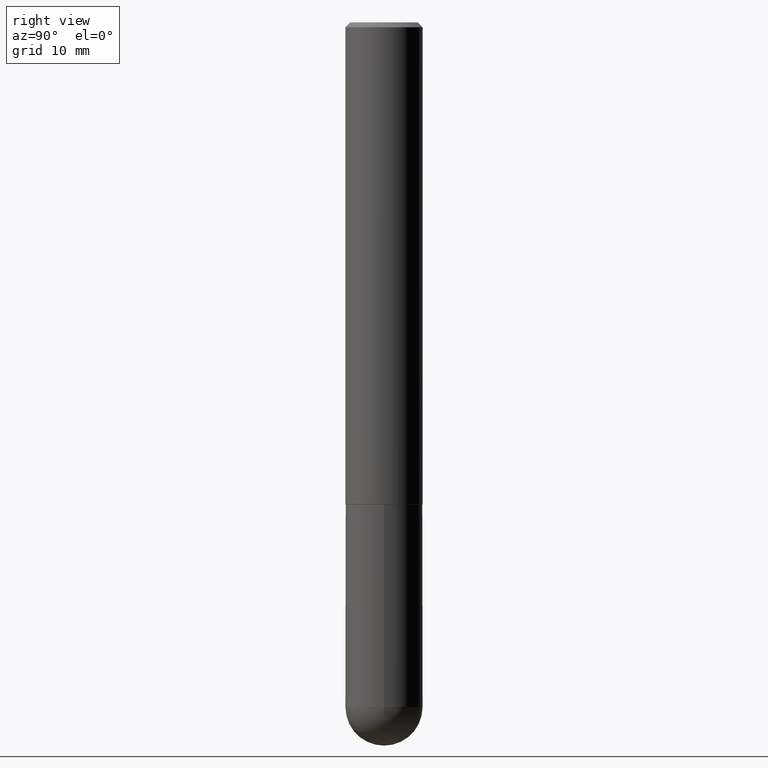
[diagram: clean part render]
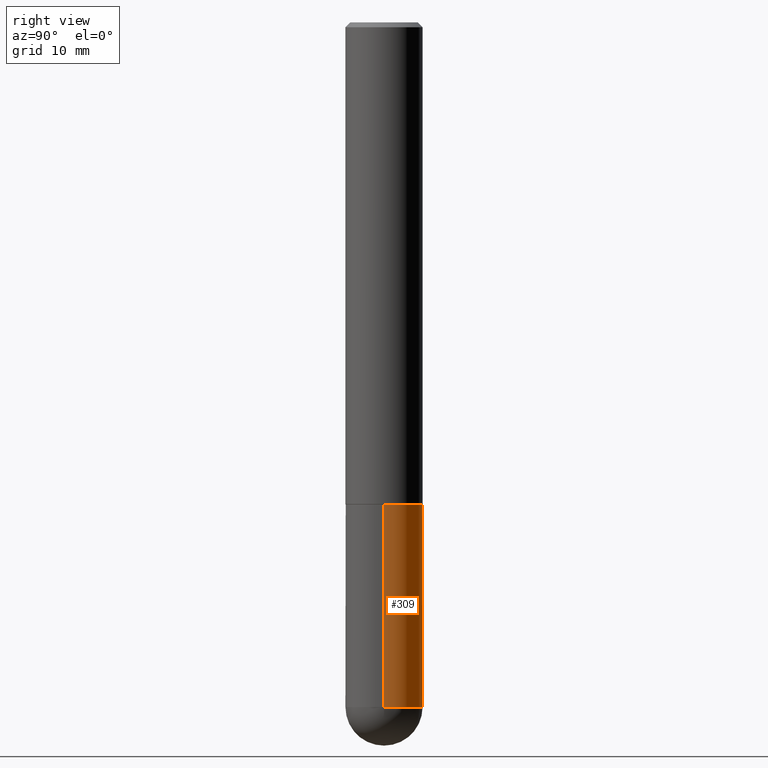
[diagram: same view with one face highlighted and labeled with its STEP entity id]
A machine part, right view. The second image highlights one B-rep face of the part: STEP entity #309.
In plain terms, the highlighted cylindrical surface (partial cylindrical patch) has radius 4.0005 mm, axis along (-0, 0, 1).
Its self-contained STEP definition (entity closure, byte-faithful):
#8 = VERTEX_POINT ( 'NONE', #401 ) ;
#25 = DIRECTION ( 'NONE',  ( 1.000000000000000000, -6.982962677686261977E-15, 0.000000000000000000 ) ) ;
#55 = DIRECTION ( 'NONE',  ( 1.000000000000000000, -6.982962677686261977E-15, 0.000000000000000000 ) ) ;
#60 = CARTESIAN_POINT ( 'NONE',  ( -0.1575000000000000011, 1.119104808822157801E-15, -7.747322767151475583E-30 ) ) ;
#61 = LINE ( 'NONE', #186, #184 ) ;
#73 = VERTEX_POINT ( 'NONE', #373 ) ;
#88 = AXIS2_PLACEMENT_3D ( 'NONE', #174, #148, #55 ) ;
#93 = CARTESIAN_POINT ( 'NONE',  ( 0.1575000000000000011, -9.416176022726072770E-15, -2.795299999999999674 ) ) ;
#99 = CIRCLE ( 'NONE', #319, 0.1575000000000000011 ) ;
#103 = VERTEX_POINT ( 'NONE', #119 ) ;
#105 = ORIENTED_EDGE ( 'NONE', *, *, #220, .F. ) ;
#119 = CARTESIAN_POINT ( 'NONE',  ( -0.1575000000000000011, -7.197254592168330052E-15, -1.968499999999999694 ) ) ;
#122 = CARTESIAN_POINT ( 'NONE',  ( 0.000000000000000000, 0.000000000000000000, 0.000000000000000000 ) ) ;
#127 = DIRECTION ( 'NONE',  ( -2.445468806185136877E-29, 3.491481338843145188E-15, 1.000000000000000000 ) ) ;
#138 = EDGE_CURVE ( 'NONE', #232, #266, #341, .T. ) ;
#148 = DIRECTION ( 'NONE',  ( -2.445468806185136597E-29, 3.491481338843145583E-15, 1.000000000000000000 ) ) ;
#157 = FACE_OUTER_BOUND ( 'NONE', #386, .T. ) ;
#167 = ORIENTED_EDGE ( 'NONE', *, *, #301, .T. ) ;
#174 = CARTESIAN_POINT ( 'NONE',  ( 6.835818953929311707E-29, -9.759737786468243605E-15, -2.795299999999999674 ) ) ;
#180 = DIRECTION ( 'NONE',  ( -2.445468806185136877E-29, 3.491481338843145188E-15, 1.000000000000000000 ) ) ;
#182 = ORIENTED_EDGE ( 'NONE', *, *, #292, .T. ) ;
#184 = VECTOR ( 'NONE', #127, 39.37007874015748143 ) ;
#185 = LINE ( 'NONE', #60, #203 ) ;
#186 = CARTESIAN_POINT ( 'NONE',  ( 0.1575000000000000011, -1.099816621735586889E-15, 7.679978421878598033E-30 ) ) ;
#189 = CIRCLE ( 'NONE', #349, 0.1575000000000000011 ) ;
#203 = VECTOR ( 'NONE', #180, 39.37007874015748143 ) ;
#220 = EDGE_CURVE ( 'NONE', #232, #73, #61, .T. ) ;
#232 = VERTEX_POINT ( 'NONE', #93 ) ;
#235 = AXIS2_PLACEMENT_3D ( 'NONE', #122, #286, #323 ) ;
#248 = CARTESIAN_POINT ( 'NONE',  ( 6.835818953929311707E-29, -9.759737786468243605E-15, -2.795299999999999674 ) ) ;
#254 = ORIENTED_EDGE ( 'NONE', *, *, #397, .F. ) ;
#266 = VERTEX_POINT ( 'NONE', #287 ) ;
#280 = CYLINDRICAL_SURFACE ( 'NONE', #235, 0.1575000000000000011 ) ;
#286 = DIRECTION ( 'NONE',  ( -2.445468806185136597E-29, 3.491481338843145583E-15, 1.000000000000000000 ) ) ;
#287 = CARTESIAN_POINT ( 'NONE',  ( 1.099816621735654731E-15, 0.1574999999999901201, -2.795300000000000118 ) ) ;
#292 = EDGE_CURVE ( 'NONE', #8, #103, #185, .T. ) ;
#293 = CARTESIAN_POINT ( 'NONE',  ( 4.813905344975440714E-29, -6.872981015512730918E-15, -1.968499999999999694 ) ) ;
#301 = EDGE_CURVE ( 'NONE', #266, #8, #189, .T. ) ;
#309 = ADVANCED_FACE ( 'NONE', ( #157 ), #280, .T. ) ;
#317 = DIRECTION ( 'NONE',  ( -2.445468806185136597E-29, 3.491481338843145583E-15, 1.000000000000000000 ) ) ;
#319 = AXIS2_PLACEMENT_3D ( 'NONE', #293, #382, #357 ) ;
#323 = DIRECTION ( 'NONE',  ( 1.000000000000000000, -6.982962677686265922E-15, 4.876176775795935232E-29 ) ) ;
#341 = CIRCLE ( 'NONE', #88, 0.1575000000000000011 ) ;
#349 = AXIS2_PLACEMENT_3D ( 'NONE', #248, #317, #25 ) ;
#357 = DIRECTION ( 'NONE',  ( 1.000000000000000000, -6.982962677686268288E-15, 0.000000000000000000 ) ) ;
#363 = ORIENTED_EDGE ( 'NONE', *, *, #138, .T. ) ;
#373 = CARTESIAN_POINT ( 'NONE',  ( 0.1575000000000000011, -7.972797637248318399E-15, -1.968499999999999694 ) ) ;
#382 = DIRECTION ( 'NONE',  ( -2.445468806185136597E-29, 3.491481338843145583E-15, 1.000000000000000000 ) ) ;
#386 = EDGE_LOOP ( 'NONE', ( #167, #182, #254, #105, #363 ) ) ;
#397 = EDGE_CURVE ( 'NONE', #73, #103, #99, .T. ) ;
#401 = CARTESIAN_POINT ( 'NONE',  ( -0.1575000000000000011, -7.197254592168330052E-15, -2.795299999999999674 ) ) ;